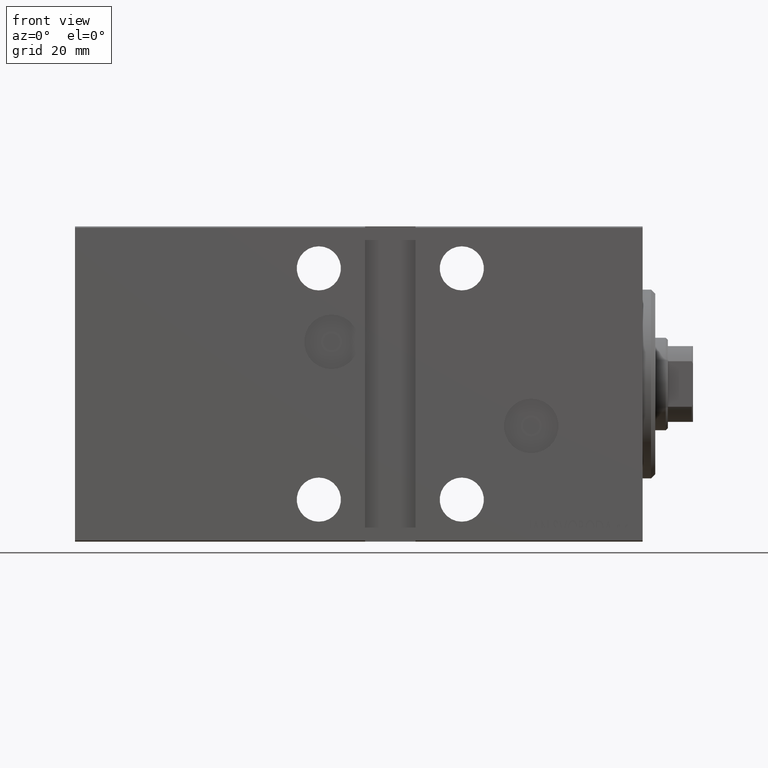
[diagram: clean part render]
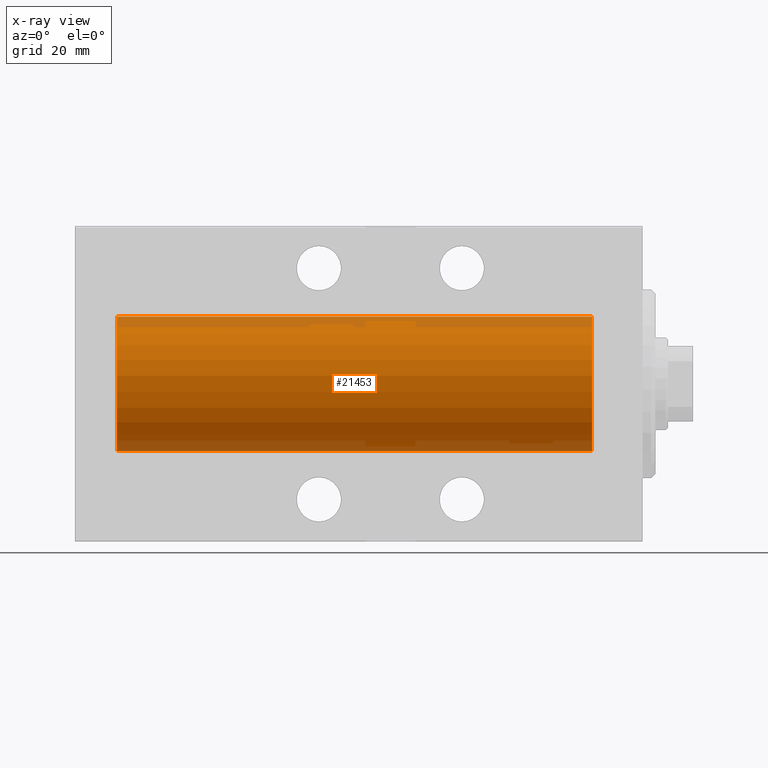
[diagram: x-ray — body ghosted, one internal face saturated and labeled with its STEP entity id]
A machine part, front view, then the same camera in x-ray: the body is ghosted and one INTERNAL B-rep face — a face not visible from any outside direction — is saturated and labeled: STEP entity #21453.
In plain terms, the highlighted cylindrical surface (partial cylindrical patch) has radius 16 mm, axis along (1, 0, -0).
Its self-contained STEP definition (entity closure, byte-faithful):
#1121 = AXIS2_PLACEMENT_3D ( 'NONE', #21285, #14874, #28361 ) ;
#1354 = CYLINDRICAL_SURFACE ( 'NONE', #1121, 16.00000000000000000 ) ;
#1844 = ORIENTED_EDGE ( 'NONE', *, *, #10109, .T. ) ;
#2410 = EDGE_CURVE ( 'NONE', #4142, #16975, #22354, .T. ) ;
#4142 = VERTEX_POINT ( 'NONE', #41314 ) ;
#4200 = ORIENTED_EDGE ( 'NONE', *, *, #38650, .F. ) ;
#4466 = FACE_OUTER_BOUND ( 'NONE', #5513, .T. ) ;
#5513 = EDGE_LOOP ( 'NONE', ( #28775, #4200, #43167, #1844 ) ) ;
#6451 = DIRECTION ( 'NONE',  ( -1.000000000000000000, -0.000000000000000000, -0.000000000000000000 ) ) ;
#7591 = CARTESIAN_POINT ( 'NONE',  ( 11.99999999999999645, 1.959434878635765131E-15, -16.00000000000000000 ) ) ;
#10109 = EDGE_CURVE ( 'NONE', #35583, #16975, #27169, .T. ) ;
#10623 = CARTESIAN_POINT ( 'NONE',  ( 125.0000000000000000, 0.000000000000000000, 16.00000000000000000 ) ) ;
#11072 = CARTESIAN_POINT ( 'NONE',  ( 125.0000000000000000, 0.000000000000000000, 16.00000000000000000 ) ) ;
#11501 = CARTESIAN_POINT ( 'NONE',  ( 125.0000000000000000, 0.000000000000000000, 0.000000000000000000 ) ) ;
#14874 = DIRECTION ( 'NONE',  ( -1.000000000000000000, -0.000000000000000000, -0.000000000000000000 ) ) ;
#16199 = CARTESIAN_POINT ( 'NONE',  ( 11.99999999999999645, 0.000000000000000000, 0.000000000000000000 ) ) ;
#16975 = VERTEX_POINT ( 'NONE', #7591 ) ;
#17040 = AXIS2_PLACEMENT_3D ( 'NONE', #11501, #31211, #17937 ) ;
#17937 = DIRECTION ( 'NONE',  ( 0.000000000000000000, 0.000000000000000000, 1.000000000000000000 ) ) ;
#19043 = CARTESIAN_POINT ( 'NONE',  ( 125.0000000000000000, 1.959434878635765131E-15, -16.00000000000000000 ) ) ;
#21285 = CARTESIAN_POINT ( 'NONE',  ( 125.0000000000000000, 0.000000000000000000, 0.000000000000000000 ) ) ;
#21453 = ADVANCED_FACE ( 'NONE', ( #4466 ), #1354, .F. ) ;
#22354 = LINE ( 'NONE', #19043, #31226 ) ;
#23399 = CIRCLE ( 'NONE', #17040, 16.00000000000000000 ) ;
#25899 = VERTEX_POINT ( 'NONE', #11072 ) ;
#27169 = CIRCLE ( 'NONE', #36369, 16.00000000000000000 ) ;
#27618 = VECTOR ( 'NONE', #6451, 1000.000000000000000 ) ;
#28361 = DIRECTION ( 'NONE',  ( 0.000000000000000000, 0.000000000000000000, 1.000000000000000000 ) ) ;
#28775 = ORIENTED_EDGE ( 'NONE', *, *, #2410, .F. ) ;
#31211 = DIRECTION ( 'NONE',  ( -1.000000000000000000, 0.000000000000000000, 0.000000000000000000 ) ) ;
#31226 = VECTOR ( 'NONE', #43377, 1000.000000000000000 ) ;
#33611 = CARTESIAN_POINT ( 'NONE',  ( 11.99999999999999645, 0.000000000000000000, 16.00000000000000000 ) ) ;
#35583 = VERTEX_POINT ( 'NONE', #33611 ) ;
#36369 = AXIS2_PLACEMENT_3D ( 'NONE', #16199, #39427, #42964 ) ;
#36769 = LINE ( 'NONE', #10623, #27618 ) ;
#38497 = EDGE_CURVE ( 'NONE', #25899, #35583, #36769, .T. ) ;
#38650 = EDGE_CURVE ( 'NONE', #25899, #4142, #23399, .T. ) ;
#39427 = DIRECTION ( 'NONE',  ( -1.000000000000000000, 0.000000000000000000, 0.000000000000000000 ) ) ;
#41314 = CARTESIAN_POINT ( 'NONE',  ( 125.0000000000000000, 1.959434878635765131E-15, -16.00000000000000000 ) ) ;
#42964 = DIRECTION ( 'NONE',  ( 0.000000000000000000, 0.000000000000000000, 1.000000000000000000 ) ) ;
#43167 = ORIENTED_EDGE ( 'NONE', *, *, #38497, .T. ) ;
#43377 = DIRECTION ( 'NONE',  ( -1.000000000000000000, -0.000000000000000000, -0.000000000000000000 ) ) ;